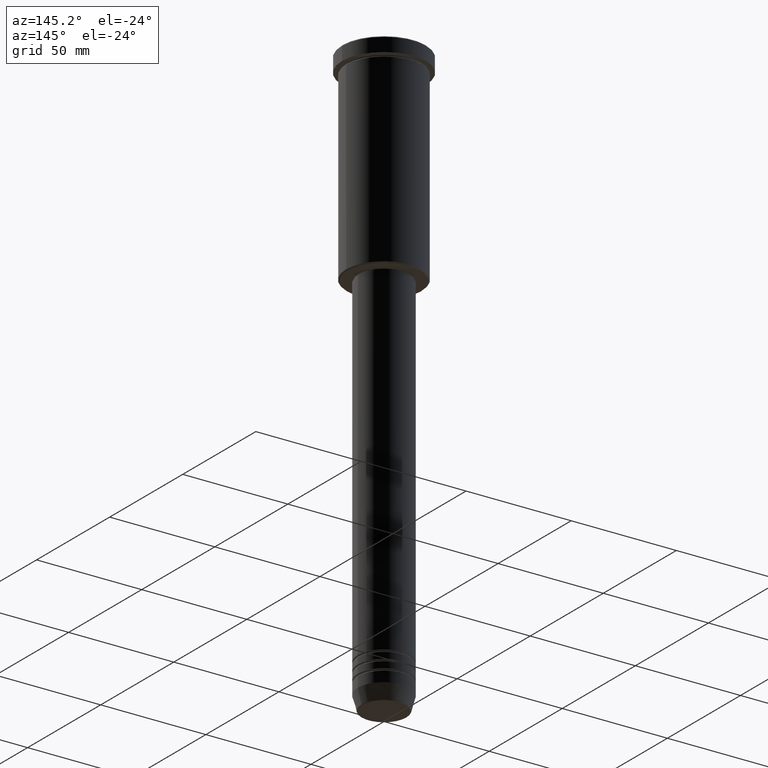
[diagram: clean part render]
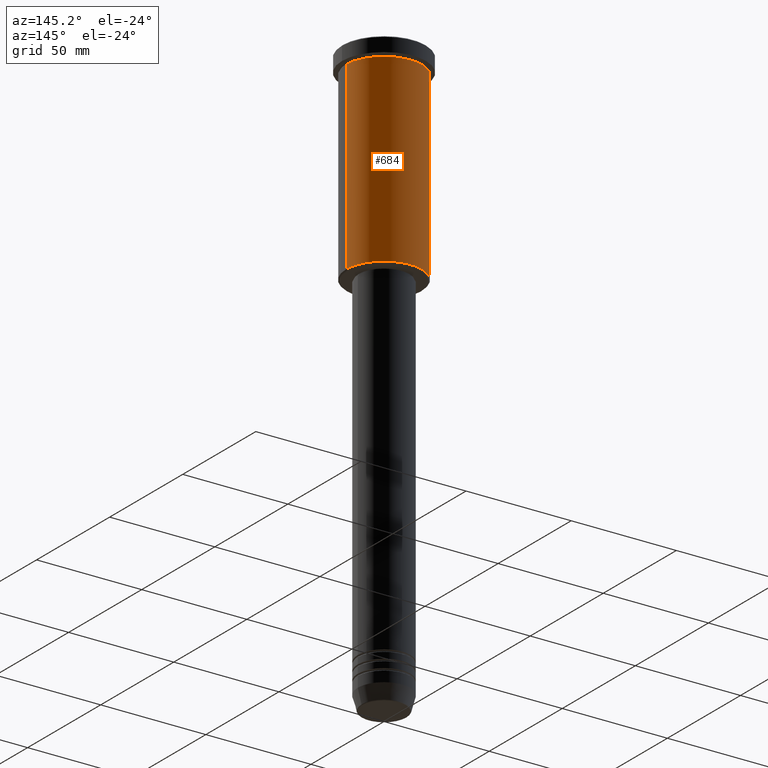
[diagram: same view with one face highlighted and labeled with its STEP entity id]
A machine part, auxiliary view. The second image highlights one B-rep face of the part: STEP entity #684.
In plain terms, the highlighted cylindrical surface (partial cylindrical patch) has radius 18 mm, axis along (-0, -0, 1).
Its self-contained STEP definition (entity closure, byte-faithful):
#42 = EDGE_CURVE ( 'NONE', #421, #940, #1145, .T. ) ;
#63 = EDGE_CURVE ( 'NONE', #385, #421, #297, .T. ) ;
#68 = DIRECTION ( 'NONE',  ( 1.000000000000000000, 0.000000000000000000, 0.000000000000000000 ) ) ;
#111 = AXIS2_PLACEMENT_3D ( 'NONE', #339, #148, #68 ) ;
#133 = AXIS2_PLACEMENT_3D ( 'NONE', #260, #345, #255 ) ;
#143 = CYLINDRICAL_SURFACE ( 'NONE', #111, 18.00000000000000000 ) ;
#146 = CARTESIAN_POINT ( 'NONE',  ( 18.00000000000000000, 0.000000000000000000, 0.000000000000000000 ) ) ;
#148 = DIRECTION ( 'NONE',  ( -0.000000000000000000, -0.000000000000000000, 1.000000000000000000 ) ) ;
#167 = ORIENTED_EDGE ( 'NONE', *, *, #371, .F. ) ;
#173 = CIRCLE ( 'NONE', #133, 18.00000000000000000 ) ;
#197 = CARTESIAN_POINT ( 'NONE',  ( 18.00000000000000000, 0.000000000000000000, -7.999999999999996447 ) ) ;
#231 = EDGE_LOOP ( 'NONE', ( #1131, #1048, #167, #486 ) ) ;
#255 = DIRECTION ( 'NONE',  ( 1.000000000000000000, 0.000000000000000000, 0.000000000000000000 ) ) ;
#260 = CARTESIAN_POINT ( 'NONE',  ( 0.000000000000000000, 0.000000000000000000, -7.999999999999996447 ) ) ;
#297 = CIRCLE ( 'NONE', #870, 18.00000000000000000 ) ;
#331 = CARTESIAN_POINT ( 'NONE',  ( -18.00000000000000000, 2.204364238465235428E-15, 0.000000000000000000 ) ) ;
#339 = CARTESIAN_POINT ( 'NONE',  ( 0.000000000000000000, 0.000000000000000000, 0.000000000000000000 ) ) ;
#345 = DIRECTION ( 'NONE',  ( -0.000000000000000000, -0.000000000000000000, 1.000000000000000000 ) ) ;
#371 = EDGE_CURVE ( 'NONE', #908, #940, #173, .T. ) ;
#378 = CARTESIAN_POINT ( 'NONE',  ( -18.00000000000000000, 2.204364238465235428E-15, -7.999999999999996447 ) ) ;
#385 = VERTEX_POINT ( 'NONE', #622 ) ;
#392 = VECTOR ( 'NONE', #609, 1000.000000000000000 ) ;
#421 = VERTEX_POINT ( 'NONE', #918 ) ;
#486 = ORIENTED_EDGE ( 'NONE', *, *, #1075, .F. ) ;
#516 = DIRECTION ( 'NONE',  ( -0.000000000000000000, -0.000000000000000000, 1.000000000000000000 ) ) ;
#609 = DIRECTION ( 'NONE',  ( -0.000000000000000000, -0.000000000000000000, 1.000000000000000000 ) ) ;
#622 = CARTESIAN_POINT ( 'NONE',  ( 18.00000000000000000, 0.000000000000000000, -95.49999999999990052 ) ) ;
#684 = ADVANCED_FACE ( 'NONE', ( #694 ), #143, .T. ) ;
#694 = FACE_OUTER_BOUND ( 'NONE', #231, .T. ) ;
#813 = DIRECTION ( 'NONE',  ( -0.000000000000000000, -0.000000000000000000, 1.000000000000000000 ) ) ;
#870 = AXIS2_PLACEMENT_3D ( 'NONE', #899, #813, #906 ) ;
#899 = CARTESIAN_POINT ( 'NONE',  ( 0.000000000000000000, 0.000000000000000000, -95.49999999999990052 ) ) ;
#906 = DIRECTION ( 'NONE',  ( -1.000000000000000000, 0.000000000000000000, 0.000000000000000000 ) ) ;
#908 = VERTEX_POINT ( 'NONE', #197 ) ;
#918 = CARTESIAN_POINT ( 'NONE',  ( -18.00000000000000000, 2.204364238465235428E-15, -95.49999999999990052 ) ) ;
#940 = VERTEX_POINT ( 'NONE', #378 ) ;
#1048 = ORIENTED_EDGE ( 'NONE', *, *, #42, .T. ) ;
#1075 = EDGE_CURVE ( 'NONE', #385, #908, #1147, .T. ) ;
#1131 = ORIENTED_EDGE ( 'NONE', *, *, #63, .T. ) ;
#1145 = LINE ( 'NONE', #331, #392 ) ;
#1147 = LINE ( 'NONE', #146, #1178 ) ;
#1178 = VECTOR ( 'NONE', #516, 1000.000000000000000 ) ;